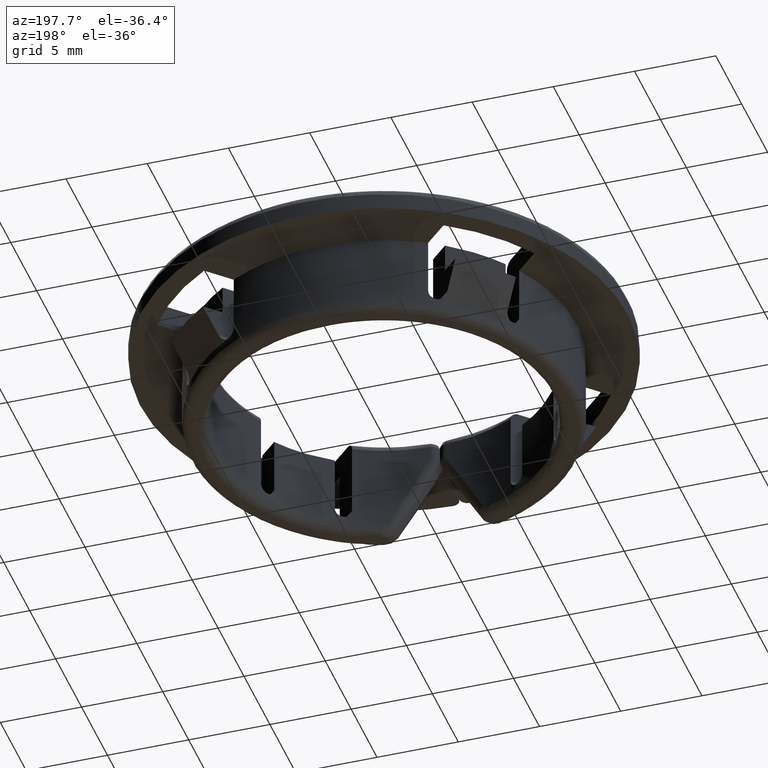
[diagram: clean part render]
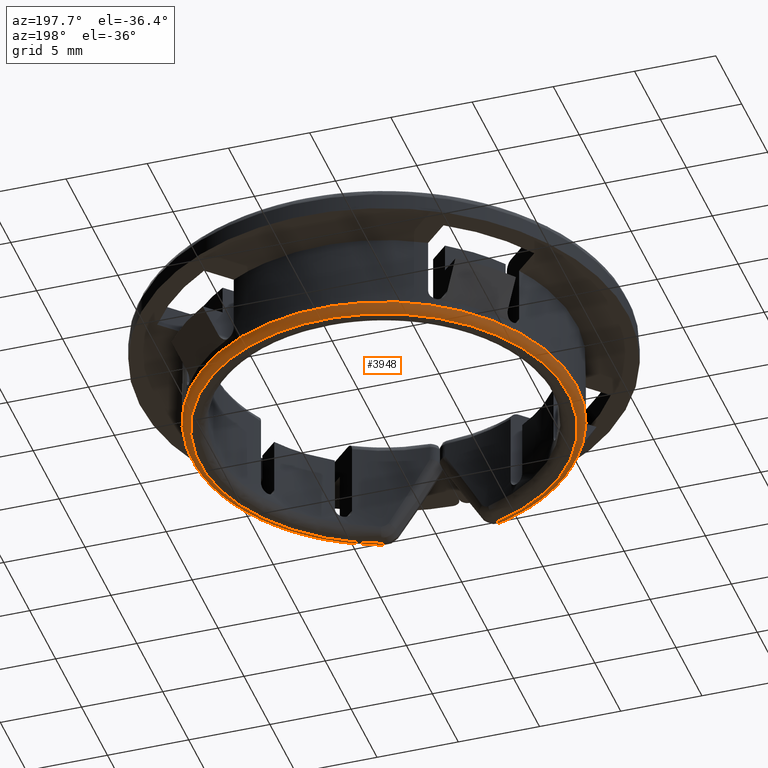
[diagram: same view with one face highlighted and labeled with its STEP entity id]
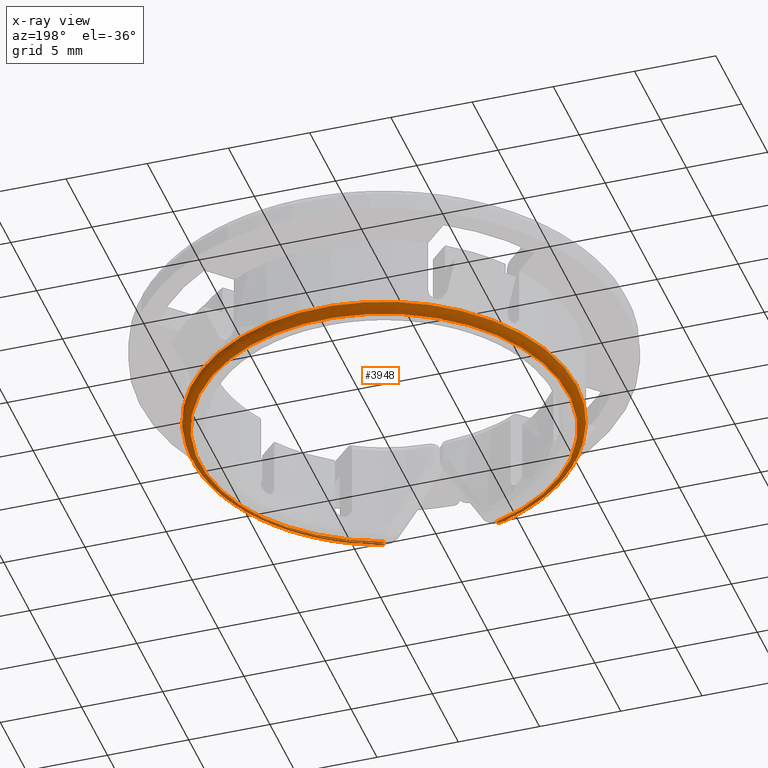
[diagram: x-ray of the same camera — body ghosted, the highlighted face saturated]
A machine part, auxiliary view. The second image highlights one B-rep face of the part: STEP entity #3948.
The next image is the same camera in x-ray: the body ghosted, the highlighted face saturated — about 0% of this face is hidden behind the body in this view.
In plain terms, the highlighted face is a freeform B-spline surface patch.
Its self-contained STEP definition (entity closure, byte-faithful):
#2301=CARTESIAN_POINT('',(-3.616705210518185,-11.284588757248001,0.500000000000000));
#2302=VERTEX_POINT('',#2301);
#2318=CARTESIAN_POINT('',(-3.464101615137670,-10.808445771710099,0.0));
#2319=VERTEX_POINT('',#2318);
#2320=CARTESIAN_POINT('',(-3.464101615137670,-10.808445771710099,0.0));
#2321=CARTESIAN_POINT('',(-3.616705210518186,-11.284588757247995,0.0));
#2322=CARTESIAN_POINT('',(-3.616705210518185,-11.284588757248001,0.500000000000000));
#2330=(BOUNDED_CURVE()B_SPLINE_CURVE(2,(#2320,#2321,#2322),.UNSPECIFIED.,.F.,.U.)CURVE()GEOMETRIC_REPRESENTATION_ITEM()QUASI_UNIFORM_CURVE()RATIONAL_B_SPLINE_CURVE((1.0,0.707106781186548,1.0))REPRESENTATION_ITEM(''));
#2331=EDGE_CURVE('',#2319,#2302,#2330,.T.);
#2834=CARTESIAN_POINT('',(3.464101615137695,-10.808445771710099,0.0));
#2835=VERTEX_POINT('',#2834);
#2852=CARTESIAN_POINT('',(3.616705210518215,-11.284588757248001,0.500000000000000));
#2853=VERTEX_POINT('',#2852);
#2854=CARTESIAN_POINT('',(3.616705210518212,-11.284588757248001,0.500000000000000));
#2855=CARTESIAN_POINT('',(3.616705210518212,-11.284588757247995,0.0));
#2856=CARTESIAN_POINT('',(3.464101615137695,-10.808445771710099,0.0));
#2864=(BOUNDED_CURVE()B_SPLINE_CURVE(2,(#2854,#2855,#2856),.UNSPECIFIED.,.F.,.U.)CURVE()GEOMETRIC_REPRESENTATION_ITEM()QUASI_UNIFORM_CURVE()RATIONAL_B_SPLINE_CURVE((1.0,0.707106781186548,1.0))REPRESENTATION_ITEM(''));
#2865=EDGE_CURVE('',#2853,#2835,#2864,.T.);
#3871=CARTESIAN_POINT('',(3.117679411531116,-10.877248726287180,0.001210310777276));
#3872=CARTESIAN_POINT('',(12.573663449535079,-8.166937737460984,0.001210310777276));
#3873=CARTESIAN_POINT('',(11.205200859530047,1.574146900447391,0.001210310777276));
#3874=CARTESIAN_POINT('',(9.836738269525005,11.315231538355762,0.001210310777276));
#3875=CARTESIAN_POINT('',(0.0,11.315231538355766,0.001210310777276));
#3876=CARTESIAN_POINT('',(-9.836738269525005,11.315231538355762,0.001210310777276));
#3877=CARTESIAN_POINT('',(-11.205200859530047,1.574146900447391,0.001210310777276));
#3878=CARTESIAN_POINT('',(-12.573663449535079,-8.166937737460984,0.001210310777276));
#3879=CARTESIAN_POINT('',(-3.117679411531116,-10.877248726287180,0.001210310777276));
#3880=CARTESIAN_POINT('',(3.275705748063574,-11.428585647399071,-0.038768463092084));
#3881=CARTESIAN_POINT('',(13.210986826779397,-8.580896673253491,-0.038768463092084));
#3882=CARTESIAN_POINT('',(11.773160745140050,1.653935947044539,-0.038768463092084));
#3883=CARTESIAN_POINT('',(10.335334663500694,11.888768567342566,-0.038768463092084));
#3884=CARTESIAN_POINT('',(0.0,11.888768567342572,-0.038768463092084));
#3885=CARTESIAN_POINT('',(-10.335334663500694,11.888768567342566,-0.038768463092084));
#3886=CARTESIAN_POINT('',(-11.773160745140050,1.653935947044539,-0.038768463092084));
#3887=CARTESIAN_POINT('',(-13.210986826779397,-8.580896673253491,-0.038768463092084));
#3888=CARTESIAN_POINT('',(-3.275705748063574,-11.428585647399071,-0.038768463092084));
#3889=CARTESIAN_POINT('',(3.264690388301570,-11.390154239892036,0.534768558158897));
#3890=CARTESIAN_POINT('',(13.166561660448725,-8.552041314681574,0.534768558158897));
#3891=CARTESIAN_POINT('',(11.733570619799798,1.648374183906694,0.534768558158897));
#3892=CARTESIAN_POINT('',(10.300579579150865,11.848789682494962,0.534768558158897));
#3893=CARTESIAN_POINT('',(0.0,11.848789682494962,0.534768558158897));
#3894=CARTESIAN_POINT('',(-10.300579579150865,11.848789682494962,0.534768558158897));
#3895=CARTESIAN_POINT('',(-11.733570619799798,1.648374183906694,0.534768558158897));
#3896=CARTESIAN_POINT('',(-13.166561660448725,-8.552041314681574,0.534768558158897));
#3897=CARTESIAN_POINT('',(-3.264690388301570,-11.390154239892036,0.534768558158897));
#3905=(BOUNDED_SURFACE()B_SPLINE_SURFACE(2,2,((#3871,#3880,#3889),(#3872,#3881,#3890),(#3873,#3882,#3891),(#3874,#3883,#3892),(#3875,#3884,#3893),(#3876,#3885,#3894),(#3877,#3886,#3895),(#3878,#3887,#3896),(#3879,#3888,#3897)),.UNSPECIFIED.,.F.,.F.,.U.)B_SPLINE_SURFACE_WITH_KNOTS((3,2,2,2,3),(3,3),(0.0,17.721081796302169,35.442163592604352,53.163245388906518,70.884327185208690),(0.0,0.911186847697856),.UNSPECIFIED.)GEOMETRIC_REPRESENTATION_ITEM()RATIONAL_B_SPLINE_SURFACE(((0.919258219033884,0.603240288391281,0.919258300072383),(0.693756058261173,0.455260117335151,0.693756119420212),(0.919258219033884,0.603240288391281,0.919258300072383),(0.693756058261173,0.455260117335151,0.693756119420212),(0.919258219033884,0.603240288391281,0.919258300072383),(0.693756058261173,0.455260117335151,0.693756119420212),(0.919258219033884,0.603240288391281,0.919258300072383),(0.693756058261173,0.455260117335151,0.693756119420212),(0.919258219033884,0.603240288391281,0.919258300072383)))REPRESENTATION_ITEM('')SURFACE());
#3906=CARTESIAN_POINT('',(-3.464101615137672,-10.808445771710099,0.0));
#3907=CARTESIAN_POINT('',(-12.714110396655855,-7.843822454270348,0.0));
#3908=CARTESIAN_POINT('',(-11.213794173001959,1.753088772864761,0.0));
#3909=CARTESIAN_POINT('',(-9.713477949348070,11.349999999999879,0.0));
#3910=CARTESIAN_POINT('',(0.0,11.349999999999881,0.0));
#3911=CARTESIAN_POINT('',(9.713477949348055,11.349999999999879,0.0));
#3912=CARTESIAN_POINT('',(11.213794173001959,1.753088772864780,0.0));
#3913=CARTESIAN_POINT('',(12.714110396655867,-7.843822454270322,0.0));
#3914=CARTESIAN_POINT('',(3.464101615137695,-10.808445771710090,0.0));
#3922=(BOUNDED_CURVE()B_SPLINE_CURVE(2,(#3906,#3907,#3908,#3909,#3910,#3911,#3912,#3913,#3914),.UNSPECIFIED.,.F.,.U.)B_SPLINE_CURVE_WITH_KNOTS((3,2,2,2,3),(0.0,0.250000000000000,0.500000000000000,0.750000000000000,1.0),.UNSPECIFIED.)CURVE()GEOMETRIC_REPRESENTATION_ITEM()RATIONAL_B_SPLINE_CURVE((1.0,0.759755605640665,1.0,0.759755605640665,1.0,0.759755605640665,1.0,0.759755605640665,1.0))REPRESENTATION_ITEM(''));
#3923=EDGE_CURVE('',#2319,#2835,#3922,.T.);
#3924=ORIENTED_EDGE('',*,*,#3923,.F.);
#3925=ORIENTED_EDGE('',*,*,#2331,.T.);
#3926=CARTESIAN_POINT('',(3.616705210518207,-11.284588757247990,0.500000000000000));
#3927=CARTESIAN_POINT('',(13.274203365671545,-8.189365293665501,0.500000000000000));
#3928=CARTESIAN_POINT('',(11.707793916306020,1.830317353167188,0.500000000000000));
#3929=CARTESIAN_POINT('',(10.141384466940490,11.849999999999879,0.500000000000000));
#3930=CARTESIAN_POINT('',(0.0,11.849999999999881,0.500000000000000));
#3931=CARTESIAN_POINT('',(-10.141384466940499,11.849999999999879,0.500000000000000));
#3932=CARTESIAN_POINT('',(-11.707793916306020,1.830317353167174,0.500000000000000));
#3933=CARTESIAN_POINT('',(-13.274203365671545,-8.189365293665517,0.500000000000000));
#3934=CARTESIAN_POINT('',(-3.616705210518194,-11.284588757247990,0.500000000000000));
#3942=(BOUNDED_CURVE()B_SPLINE_CURVE(2,(#3926,#3927,#3928,#3929,#3930,#3931,#3932,#3933,#3934),.UNSPECIFIED.,.F.,.U.)B_SPLINE_CURVE_WITH_KNOTS((3,2,2,2,3),(0.0,0.250000000000000,0.500000000000000,0.750000000000000,1.0),.UNSPECIFIED.)CURVE()GEOMETRIC_REPRESENTATION_ITEM()RATIONAL_B_SPLINE_CURVE((1.0,0.759755605640665,1.0,0.759755605640665,1.0,0.759755605640665,1.0,0.759755605640665,1.0))REPRESENTATION_ITEM(''));
#3943=EDGE_CURVE('',#2853,#2302,#3942,.T.);
#3944=ORIENTED_EDGE('',*,*,#3943,.F.);
#3945=ORIENTED_EDGE('',*,*,#2865,.T.);
#3946=EDGE_LOOP('',(#3924,#3925,#3944,#3945));
#3947=FACE_OUTER_BOUND('',#3946,.T.);
#3948=ADVANCED_FACE('',(#3947),#3905,.T.);